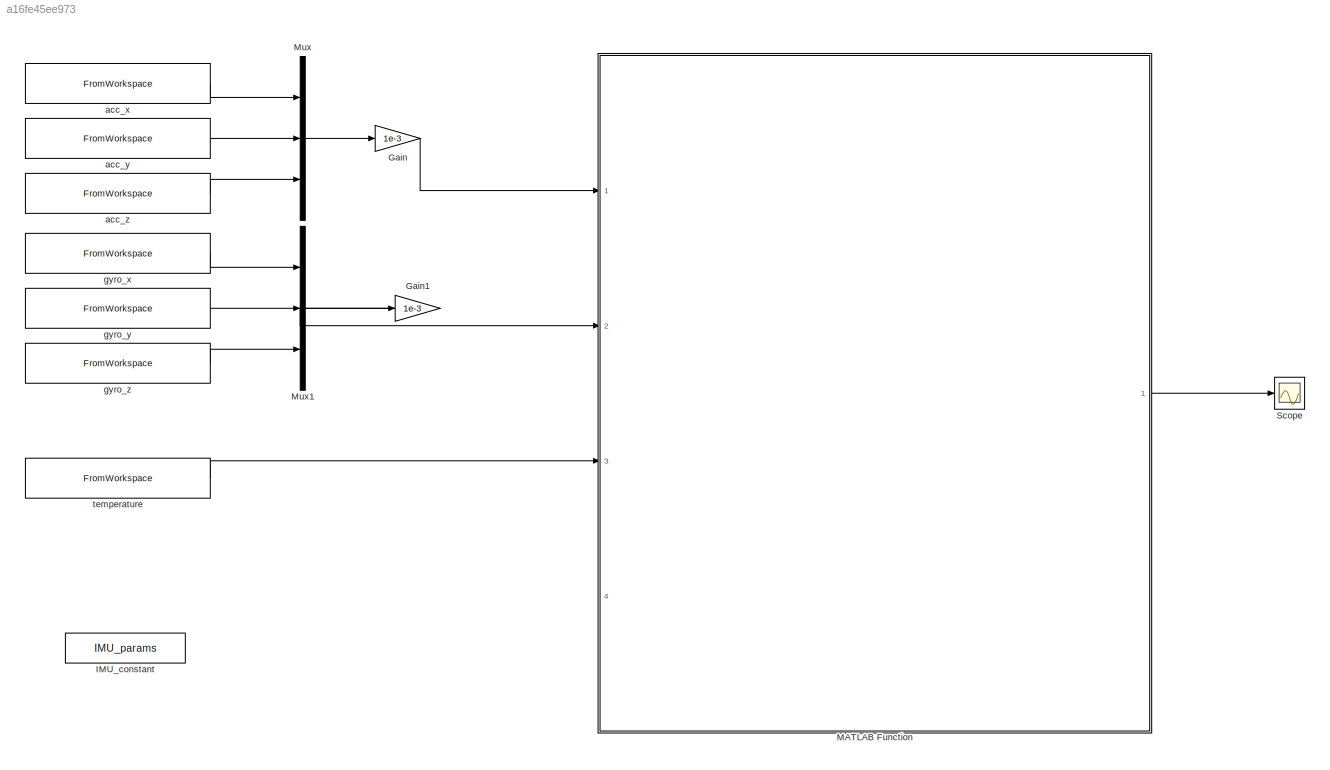
MODEL slx_a16fe45ee973
KIND model
CONFIG AbsTol = auto
CONFIG EnableMultiTasking = off
CONFIG FixedStep = auto
CONFIG MaxStep = auto
CONFIG MinStep = auto
CONFIG RelTol = 1e-3
CONFIG SampleTimeConstraint = Unconstrained
CONFIG SolverName = VariableStepAuto
CONFIG StartTime = 0.0
CONFIG StopTime = 330
BLOCK [Gain] Gain
  Gain = 1e-3
BLOCK [Gain] Gain1
  Gain = 1e-3
BLOCK [Constant] IMU_constant
  Value = IMU_params
  VectorParams1D = off
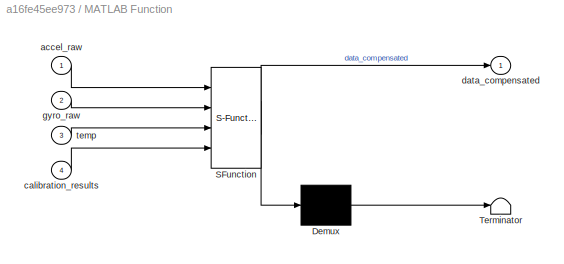
BLOCK [SubSystem] MATLAB Function
  ErrorFcn = Stateflow.Translate.translate
  PermitHierarchicalResolution = ExplicitOnly
  Ports = [4, 1]
  RequestExecContextInheritance = off
  SFBlockType = MATLAB Function
  TreatAsAtomicUnit = on
BLOCK [Demux] MATLAB Function/ Demux 
  Outputs = 1
  Ports = [1, 1]
BLOCK [S-Function] MATLAB Function/ SFunction 
  EnableBusSupport = on
  FunctionName = sf_sfun
  PortCounts = [4 2]
  Ports = [4, 2]
  SFcnIsStateOwnerBlock = off
  SFunctionDeploymentMode = off
  Tag = Stateflow S-Function 2
BLOCK [Terminator] MATLAB Function/ Terminator 
BLOCK [Inport] MATLAB Function/accel_raw
BLOCK [Inport] MATLAB Function/calibration_results
  Port = 4
BLOCK [Outport] MATLAB Function/data_compensated
BLOCK [Inport] MATLAB Function/gyro_raw
  Port = 2
BLOCK [Inport] MATLAB Function/temp
  Port = 3
BLOCK [Mux] Mux
  DisplayOption = bar
  Inputs = 3
  Ports = [3, 1]
BLOCK [Mux] Mux1
  DisplayOption = bar
  Inputs = 3
  Ports = [3, 1]
BLOCK [Scope] Scope
  Floating = off
  NumInputPorts = 1
  Ports = [1]
  ScopeSpecificationString = Simulink.scopes.TimeScopeBlockCfg('CurrentConfiguration', extmgr.ConfigurationSet(extmgr.Configuration('Core','General UI',true),extmgr.Configuration('Core','Source UI',true),extmgr.Configuration('Sources','WiredSimulink',true),extmgr.Configuration('Visuals','Time Domain',true),extmgr.Configuration('Tools','Plot Navigation',true),extmgr.Configuration('Tools','Measurements',true)),'Version','2021a'...<+1ch>
BLOCK [FromWorkspace] acc_x
  SampleTime = -1
  VariableName = CANFDMessage__acceleration_mg_0
BLOCK [FromWorkspace] acc_y
  SampleTime = -1
  VariableName = CANFDMessage__acceleration_mg_1
BLOCK [FromWorkspace] acc_z
  SampleTime = -1
  VariableName = CANFDMessage__acceleration_mg_2
BLOCK [FromWorkspace] gyro_x
  SampleTime = -1
  VariableName = CANFDMessage__angular_rate_mdps_0
BLOCK [FromWorkspace] gyro_y
  SampleTime = -1
  VariableName = CANFDMessage__angular_rate_mdps_1
BLOCK [FromWorkspace] gyro_z
  SampleTime = -1
  VariableName = CANFDMessage__angular_rate_mdps_2
BLOCK [FromWorkspace] temperature
  SampleTime = -1
  VariableName = CANFDMessage__temperature_degC
LINE Gain1:1 -> MATLAB Function:2
LINE Gain:1 -> MATLAB Function:1
LINE MATLAB Function:1 -> Scope:1
LINE Mux1:1 -> Gain1:1
LINE Mux:1 -> Gain:1
LINE acc_x:1 -> Mux:1
LINE acc_y:1 -> Mux:2
LINE acc_z:1 -> Mux:3
LINE gyro_x:1 -> Mux1:1
LINE gyro_y:1 -> Mux1:2
LINE gyro_z:1 -> Mux1:3
LINE temperature:1 -> MATLAB Function:3
CHART MATLAB Function states=1 transitions=1
  STATE_LABEL 'eML_blk_kernel()'
  STATE_LABEL 'SCRIPT:\nfunction data_compensated  = imu_preprocessing(accel_raw, gyro_raw, temp, calibration_results)\n% IMU信号预处理函数：实现滤波与误差补偿\n% 输入：\n%   accel_raw       - 原始加速度计数据 [3×1] (m/s²)\n%   gyro_raw        - 原始陀螺仪数据 [3×1] (rad/s)\n%   temp            - 当前IMU温度 (℃)\n%   dt              - 采样时间间隔 (s)\n%   accel_params    - 加速度计误差参数结构体，包含：\n%       .bias        - 零偏 [3×1] (m/s²)\n%       .temp_coeff  - 温度系数 [3×1] (m...<+1595ch>'
CHART  states=0 transitions=0
